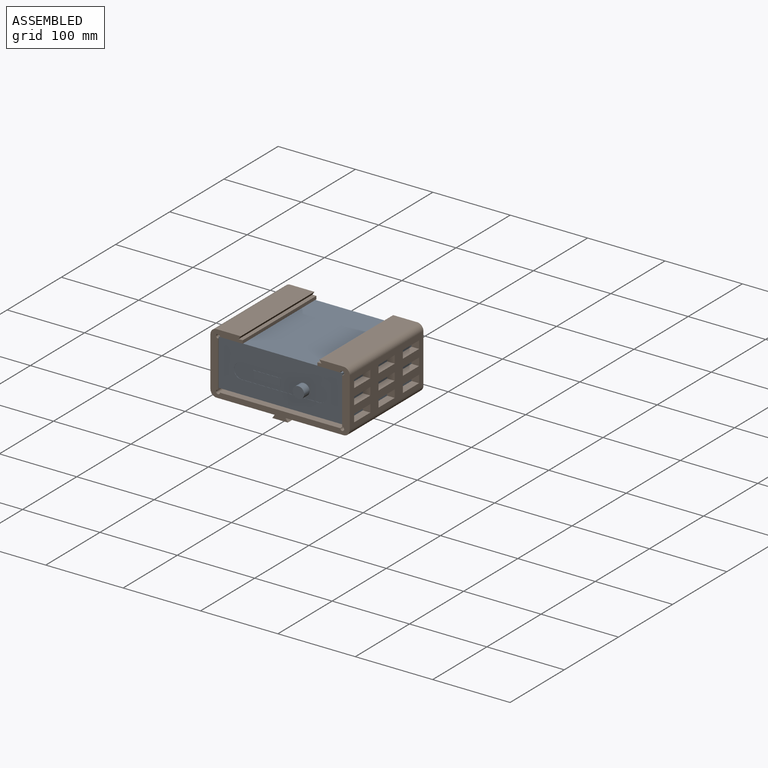
[diagram: assembled view]
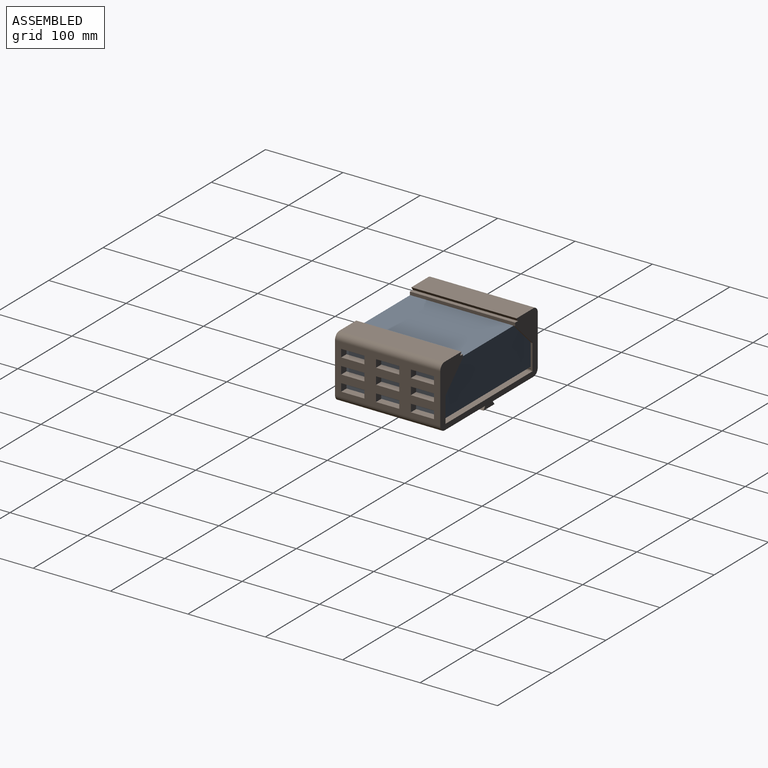
[diagram: assembled view, second angle]
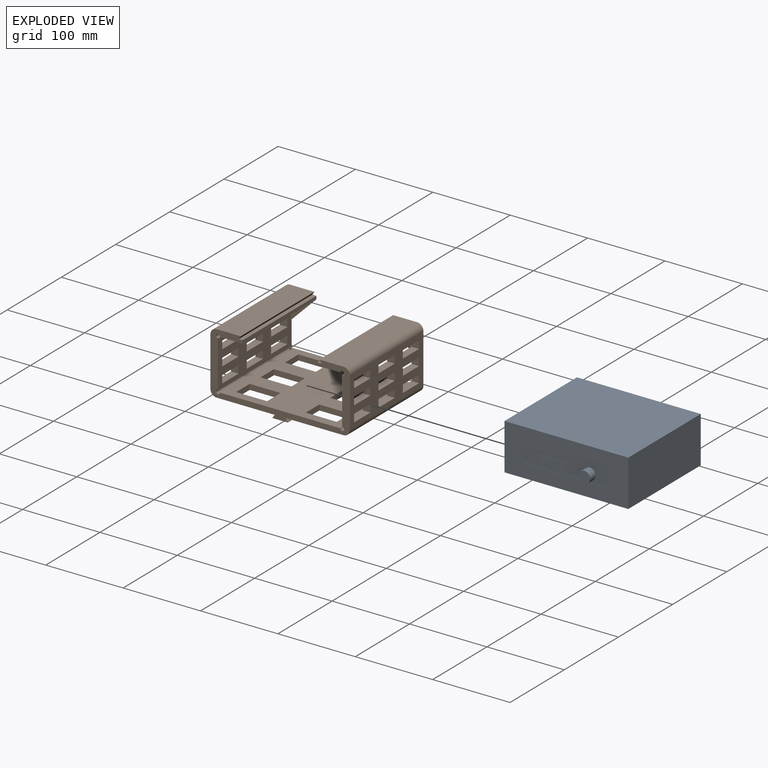
[diagram: exploded view]
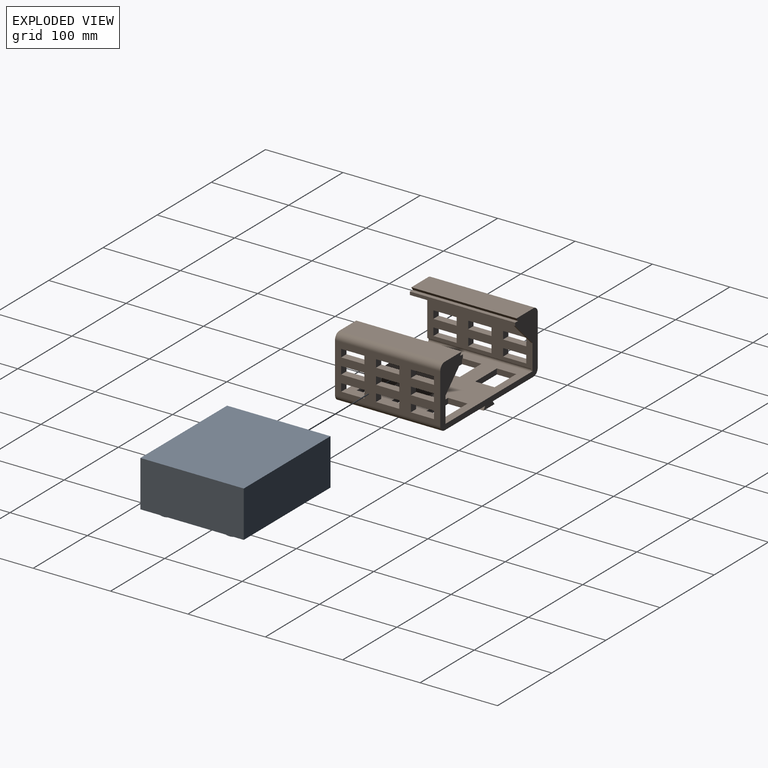
[diagram: exploded view, second angle]
ASSEMBLY  parts=2 mates=3
PART A: 26 faces, bbox 160x143.4x65 mm
  f0: plane 133.6x60mm, normal (1,0,0), area 8016mm2, adj f2,f3,f4,f9
  f1: plane 133.6x60mm, normal (-1,0,0), area 8016mm2, adj f2,f3,f4,f9
  f2: plane 160x133.6mm, normal (0,0,1), area 21376mm2, adj f0,f1,f3,f4
  f3: plane 160x60mm, normal (0,1,0), area 9600mm2, adj f0,f1,f2,f9
  f4: plane 160x60mm, normal (0,-1,0), area 7285.8mm2, adj f0,f1,f2,f9,f14,f15,f16,f21
  f5: cylinder r=10mm len=20mm, axis (0,0,-1), area 314.2mm2, adj f9,f12
  f6: cylinder r=10mm len=20mm, axis (0,0,-1), area 314.2mm2, adj f9,f11
  f7: cylinder r=10mm len=20mm, axis (0,0,-1), area 314.2mm2, adj f9,f10
  f8: cylinder r=10mm len=20mm, axis (0,0,-1), area 314.2mm2, adj f9,f13
  f9: plane 160x133.6mm, normal (0,0,-1), area 20119.4mm2, adj f0,f1,f3,f4,f5,f6,f7,f8
  f10: plane 20x20mm, normal (0,0,-1), area 314.2mm2, adj f7
  f11: plane 20x20mm, normal (0,0,-1), area 314.2mm2, adj f6
  f12: plane 20x20mm, normal (0,0,-1), area 314.2mm2, adj f5
  f13: plane 20x20mm, normal (0,0,-1), area 314.2mm2, adj f8
  f14: cylinder r=10mm len=20mm, axis (0,-1,0), area 6.3mm2, adj f4,f15,f21,f22
  f15: plane 100x0.2mm, normal (0,0,1), area 20mm2, adj f4,f14,f16,f22
  f16: cylinder r=10mm len=20mm, axis (0,-1,0), area 6.3mm2, adj f4,f15,f21,f22
  f17: plane 35x0.2mm, normal (0,0,1), area 7mm2, adj f18,f20,f22,f23
  f18: plane 10x0.2mm, normal (1,0,0), area 2mm2, adj f17,f19,f22,f23
  f19: plane 35x0.2mm, normal (0,0,-1), area 7mm2, adj f18,f20,f22,f23
  f20: plane 10x0.2mm, normal (-1,0,0), area 2mm2, adj f17,f19,f22,f23
  f21: plane 100x0.2mm, normal (0,0,-1), area 20mm2, adj f4,f14,f16,f22
  f22: plane 120x20mm, normal (0,-1,0), area 1787.4mm2, adj f14,f15,f16,f17,f18,f19,f20,f21
  f23: plane 35x10mm, normal (0,-1,0), area 350mm2, adj f17,f18,f19,f20
  f24: cylinder r=7.5mm len=15mm, axis (0,1,0), area 471.2mm2, adj f22,f25
  f25: plane 15x15mm, normal (0,-1,0), area 176.7mm2, adj f24
PART B: 132 faces, bbox 180x136x84.5 mm
  f0: plane 25x7mm, normal (1,0,0), area 175mm2, adj f1,f3,f91,f102
  f1: plane 40x7mm, normal (0,-1,0), area 280mm2, adj f0,f2,f91,f102
  f2: plane 25x7mm, normal (-1,0,0), area 175mm2, adj f1,f3,f91,f102
  f3: plane 40x7mm, normal (0,1,0), area 280mm2, adj f0,f2,f91,f102
  f4: plane 25x7mm, normal (1,0,0), area 175mm2, adj f5,f7,f91,f102
  f5: plane 40x7mm, normal (0,-1,0), area 280mm2, adj f4,f6,f91,f102
  f6: plane 25x7mm, normal (-1,0,0), area 175mm2, adj f5,f7,f91,f102
  f7: plane 40x7mm, normal (0,1,0), area 280mm2, adj f4,f6,f91,f102
  f8: plane 25x7mm, normal (1,0,0), area 175mm2, adj f9,f11,f91,f102
  f9: plane 40x7mm, normal (0,-1,0), area 280mm2, adj f8,f10,f91,f102
  f10: plane 25x7mm, normal (-1,0,0), area 175mm2, adj f9,f11,f91,f102
  f11: plane 40x7mm, normal (0,1,0), area 280mm2, adj f8,f10,f91,f102
  f12: plane 25x7mm, normal (1,0,0), area 175mm2, adj f13,f15,f95,f102
  f13: plane 40x7mm, normal (0,-1,0), area 280mm2, adj f12,f14,f95,f102
  f14: plane 25x7mm, normal (-1,0,0), area 175mm2, adj f13,f15,f95,f102
  f15: plane 40x7mm, normal (0,1,0), area 280mm2, adj f12,f14,f95,f102
  f16: plane 25x7mm, normal (1,0,0), area 175mm2, adj f17,f19,f95,f102
  f17: plane 40x7mm, normal (0,-1,0), area 280mm2, adj f16,f18,f95,f102
  f18: plane 25x7mm, normal (-1,0,0), area 175mm2, adj f17,f19,f95,f102
  f19: plane 40x7mm, normal (0,1,0), area 280mm2, adj f16,f18,f95,f102
  f20: plane 10x9.75mm, normal (0,-1,0), area 97.5mm2, adj f21,f23,f84,f87
  f21: plane 30x9.75mm, normal (0,0,-1), area 292.5mm2, adj f20,f22,f84,f87
  f22: plane 10x9.75mm, normal (0,1,0), area 97.5mm2, adj f21,f23,f84,f87
  f23: plane 30x9.75mm, normal (0,0,1), area 292.5mm2, adj f20,f22,f84,f87
  f24: plane 10x9.75mm, normal (0,-1,0), area 97.5mm2, adj f25,f27,f85,f86
  f25: plane 30x9.75mm, normal (0,0,-1), area 292.5mm2, adj f24,f26,f85,f86
  f26: plane 10x9.75mm, normal (0,1,0), area 97.5mm2, adj f25,f27,f85,f86
  f27: plane 30x9.75mm, normal (0,0,1), area 292.5mm2, adj f24,f26,f85,f86
  f28: plane 10x9.75mm, normal (0,-1,0), area 97.5mm2, adj f29,f31,f84,f87
  f29: plane 30x9.75mm, normal (0,0,-1), area 292.5mm2, adj f28,f30,f84,f87
  f30: plane 10x9.75mm, normal (0,1,0), area 97.5mm2, adj f29,f31,f84,f87
  f31: plane 30x9.75mm, normal (0,0,1), area 292.5mm2, adj f28,f30,f84,f87
  f32: plane 10x9.75mm, normal (0,-1,0), area 97.5mm2, adj f33,f35,f85,f86
  f33: plane 30x9.75mm, normal (0,0,-1), area 292.5mm2, adj f32,f34,f85,f86
  f34: plane 10x9.75mm, normal (0,1,0), area 97.5mm2, adj f33,f35,f85,f86
  f35: plane 30x9.75mm, normal (0,0,1), area 292.5mm2, adj f32,f34,f85,f86
  f36: plane 10x9.75mm, normal (0,-1,0), area 97.5mm2, adj f37,f39,f84,f87
  f37: plane 30x9.75mm, normal (0,0,-1), area 292.5mm2, adj f36,f38,f84,f87
  f38: plane 10x9.75mm, normal (0,1,0), area 97.5mm2, adj f37,f39,f84,f87
  f39: plane 30x9.75mm, normal (0,0,1), area 292.5mm2, adj f36,f38,f84,f87
  f40: plane 10x9.75mm, normal (0,-1,0), area 97.5mm2, adj f41,f43,f85,f86
  f41: plane 30x9.75mm, normal (0,0,-1), area 292.5mm2, adj f40,f42,f85,f86
  f42: plane 10x9.75mm, normal (0,1,0), area 97.5mm2, adj f41,f43,f85,f86
  f43: plane 30x9.75mm, normal (0,0,1), area 292.5mm2, adj f40,f42,f85,f86
  f44: plane 10x9.75mm, normal (0,-1,0), area 97.5mm2, adj f45,f47,f84,f87
  f45: plane 30x9.75mm, normal (0,0,-1), area 292.5mm2, adj f44,f46,f84,f87
  f46: plane 10x9.75mm, normal (0,1,0), area 97.5mm2, adj f45,f47,f84,f87
  f47: plane 30x9.75mm, normal (0,0,1), area 292.5mm2, adj f44,f46,f84,f87
  f48: plane 10x9.75mm, normal (0,-1,0), area 97.5mm2, adj f49,f51,f85,f86
  f49: plane 30x9.75mm, normal (0,0,-1), area 292.5mm2, adj f48,f50,f85,f86
  f50: plane 10x9.75mm, normal (0,1,0), area 97.5mm2, adj f49,f51,f85,f86
  f51: plane 30x9.75mm, normal (0,0,1), area 292.5mm2, adj f48,f50,f85,f86
  f52: plane 10x9.75mm, normal (0,-1,0), area 97.5mm2, adj f53,f55,f84,f87
  f53: plane 30x9.75mm, normal (0,0,-1), area 292.5mm2, adj f52,f54,f84,f87
  f54: plane 10x9.75mm, normal (0,1,0), area 97.5mm2, adj f53,f55,f84,f87
  f55: plane 30x9.75mm, normal (0,0,1), area 292.5mm2, adj f52,f54,f84,f87
  f56: plane 10x9.75mm, normal (0,-1,0), area 97.5mm2, adj f57,f59,f85,f86
  f57: plane 30x9.75mm, normal (0,0,-1), area 292.5mm2, adj f56,f58,f85,f86
  f58: plane 10x9.75mm, normal (0,1,0), area 97.5mm2, adj f57,f59,f85,f86
  f59: plane 30x9.75mm, normal (0,0,1), area 292.5mm2, adj f56,f58,f85,f86
  f60: plane 10x9.75mm, normal (0,-1,0), area 97.5mm2, adj f61,f63,f84,f87
  f61: plane 30x9.75mm, normal (0,0,-1), area 292.5mm2, adj f60,f62,f84,f87
  f62: plane 10x9.75mm, normal (0,1,0), area 97.5mm2, adj f61,f63,f84,f87
  f63: plane 30x9.75mm, normal (0,0,1), area 292.5mm2, adj f60,f62,f84,f87
  f64: plane 10x9.75mm, normal (0,-1,0), area 97.5mm2, adj f65,f67,f85,f86
  f65: plane 30x9.75mm, normal (0,0,-1), area 292.5mm2, adj f64,f66,f85,f86
  f66: plane 10x9.75mm, normal (0,1,0), area 97.5mm2, adj f65,f67,f85,f86
  f67: plane 30x9.75mm, normal (0,0,1), area 292.5mm2, adj f64,f66,f85,f86
  f68: plane 10x9.75mm, normal (0,-1,0), area 97.5mm2, adj f69,f71,f84,f87
  f69: plane 30x9.75mm, normal (0,0,-1), area 292.5mm2, adj f68,f70,f84,f87
  f70: plane 10x9.75mm, normal (0,1,0), area 97.5mm2, adj f69,f71,f84,f87
  f71: plane 30x9.75mm, normal (0,0,1), area 292.5mm2, adj f68,f70,f84,f87
  f72: plane 10x9.75mm, normal (0,-1,0), area 97.5mm2, adj f73,f75,f85,f86
  f73: plane 30x9.75mm, normal (0,0,-1), area 292.5mm2, adj f72,f74,f85,f86
  f74: plane 10x9.75mm, normal (0,1,0), area 97.5mm2, adj f73,f75,f85,f86
  f75: plane 30x9.75mm, normal (0,0,1), area 292.5mm2, adj f72,f74,f85,f86
  f76: plane 10x9.75mm, normal (0,-1,0), area 97.5mm2, adj f77,f79,f84,f87
  f77: plane 30x9.75mm, normal (0,0,-1), area 292.5mm2, adj f76,f78,f84,f87
  f78: plane 10x9.75mm, normal (0,1,0), area 97.5mm2, adj f77,f79,f84,f87
  f79: plane 30x9.75mm, normal (0,0,1), area 292.5mm2, adj f76,f78,f84,f87
  f80: plane 10x9.75mm, normal (0,-1,0), area 97.5mm2, adj f81,f83,f85,f86
  f81: plane 30x9.75mm, normal (0,0,-1), area 292.5mm2, adj f80,f82,f85,f86
  f82: plane 10x9.75mm, normal (0,1,0), area 97.5mm2, adj f81,f83,f85,f86
  f83: plane 30x9.75mm, normal (0,0,1), area 292.5mm2, adj f80,f82,f85,f86
  f84: plane 136x62.5mm, normal (-1,0,0), area 5406mm2, adj f20,f21,f22,f23,f28,f29,f30,f31
  f85: plane 136x62.5mm, normal (1,0,0), area 5406mm2, adj f24,f25,f26,f27,f32,f33,f34,f35
  f86: plane 136x64mm, normal (-1,0,0), area 6004mm2, adj f24,f25,f26,f27,f32,f33,f34,f35
  f87: plane 136x64mm, normal (1,0,0), area 6004mm2, adj f20,f21,f22,f23,f28,f29,f30,f31
  f88: plane 134x29.5mm, normal (0,0,-1), area 3953mm2, adj f101,f109,f113,f114
  f89: plane 134x29.5mm, normal (0,0,-1), area 3953mm2, adj f103,f109,f111,f117
  f90: cylinder r=8mm len=136mm, axis (0,1,0), area 1709mm2, adj f86,f91,f108,f109
  f91: plane 136x75mm, normal (0,0,-1), area 7200mm2, adj f0,f1,f2,f3,f4,f5,f6,f7
  f92: plane 136x4.5mm, normal (-0.83,0,0.56), area 738.2mm2, adj f91,f93,f108,f109
  f93: plane 136x20.07mm, normal (0,0,-1), area 2729.6mm2, adj f92,f94,f108,f109
  f94: plane 136x4.5mm, normal (0.83,0,0.56), area 738.2mm2, adj f93,f95,f108,f109
  f95: plane 136x75mm, normal (0,0,-1), area 7200mm2, adj f12,f13,f14,f15,f16,f17,f18,f19
  f96: cylinder r=8mm len=136mm, axis (0,1,0), area 1709mm2, adj f87,f95,f108,f109
  f97: cylinder r=8mm len=136mm, axis (0,1,0), area 1709mm2, adj f87,f98,f108,f109
  f98: plane 136x31.13mm, normal (0,0,1), area 4233.3mm2, adj f97,f99,f108,f109
  f99: plane 136x4mm, normal (-0.84,0,-0.55), area 650.9mm2, adj f98,f100,f108,f109
  f100: plane 136x5.25mm, normal (0,0,1), area 714mm2, adj f99,f101,f108,f109
  f101: plane 136x4mm, normal (-1,0,0), area 544mm2, adj f88,f100,f108,f109,f112
  f102: plane 160.5x136mm, normal (0,0,1), area 15158mm2, adj f0,f1,f2,f3,f4,f5,f6,f7
  f103: plane 136x4mm, normal (1,0,0), area 544mm2, adj f89,f104,f108,f109,f110
  f104: plane 136x5.25mm, normal (0,0,1), area 714mm2, adj f103,f105,f108,f109
  f105: plane 136x4mm, normal (0.84,0,-0.55), area 650.9mm2, adj f104,f106,f108,f109
  f106: plane 136x31.13mm, normal (0,0,1), area 4233.3mm2, adj f105,f107,f108,f109
  f107: cylinder r=8mm len=136mm, axis (0,1,0), area 1709mm2, adj f86,f106,f108,f109
  f108: plane 180x84.5mm, normal (0,-1,0), area 4209.7mm2, adj f84,f85,f86,f87,f90,f91,f92,f93
  f109: plane 180x84.5mm, normal (0,1,0), area 3126.8mm2, adj f84,f85,f86,f87,f88,f89,f90,f91
  f110: plane 32x32mm, normal (0.71,0,-0.71), area 90.5mm2, adj f85,f103,f108,f111
  f111: plane 34.5x34.5mm, normal (0,1,0), area 526.7mm2, adj f85,f89,f110,f117
  f112: plane 32x32mm, normal (-0.71,0,-0.71), area 90.5mm2, adj f84,f101,f108,f113
  f113: plane 34.5x34.5mm, normal (0,1,0), area 526.7mm2, adj f84,f88,f112,f114
  f114: cylinder r=2.5mm len=134mm, axis (0,1,0), area 1578.7mm2, adj f84,f88,f109,f113
  f115: plane 5x5mm, normal (0,1,0), area 14.7mm2, adj f85,f102,f116
  f116: cylinder r=2.5mm len=134mm, axis (0,1,0), area 1578.7mm2, adj f85,f102,f109,f115
  f117: cylinder r=2.5mm len=134mm, axis (0,1,0), area 1578.7mm2, adj f85,f89,f109,f111
  f118: plane 5x5mm, normal (0,1,0), area 14.7mm2, adj f84,f102,f119
  f119: cylinder r=2.5mm len=134mm, axis (0,1,0), area 1578.7mm2, adj f84,f102,f109,f118
  f120: plane 30x9.75mm, normal (0,0,1), area 292.5mm2, adj f84,f87,f121,f123
  f121: plane 10x9.75mm, normal (0,1,0), area 97.5mm2, adj f84,f87,f120,f122
  f122: plane 30x9.75mm, normal (0,0,-1), area 292.5mm2, adj f84,f87,f121,f123
  f123: plane 10x9.75mm, normal (0,-1,0), area 97.5mm2, adj f84,f87,f120,f122
  f124: plane 10x9.75mm, normal (0,-1,0), area 97.5mm2, adj f85,f86,f125,f127
  f125: plane 30x9.75mm, normal (0,0,-1), area 292.5mm2, adj f85,f86,f124,f126
  f126: plane 10x9.75mm, normal (0,1,0), area 97.5mm2, adj f85,f86,f125,f127
  f127: plane 30x9.75mm, normal (0,0,1), area 292.5mm2, adj f85,f86,f124,f126
  f128: plane 40x7mm, normal (0,-1,0), area 280mm2, adj f95,f102,f129,f130
  f129: plane 25x7mm, normal (1,0,0), area 175mm2, adj f95,f102,f128,f131
  f130: plane 25x7mm, normal (-1,0,0), area 175mm2, adj f95,f102,f128,f131
  f131: plane 40x7mm, normal (0,1,0), area 280mm2, adj f95,f102,f129,f130
PLACE A t=(0.04,-66.8,-0.36)mm fixed
PLACE B rot(axis=(0,0,1),180deg) t=(-0.21,-67.2,-32.86)mm
MATE planar B.f85 <-> A.f0  axis (-1,0,0) through (80.04,-59.2,14.14)mm
MATE planar A.f3 <-> B.f113  axis (0,1,0) through (0.04,66.8,2.14)mm
MATE planar A.f6 <-> B.f102  axis (0,0,-1) through (62.54,-42.5,-32.86)mm
